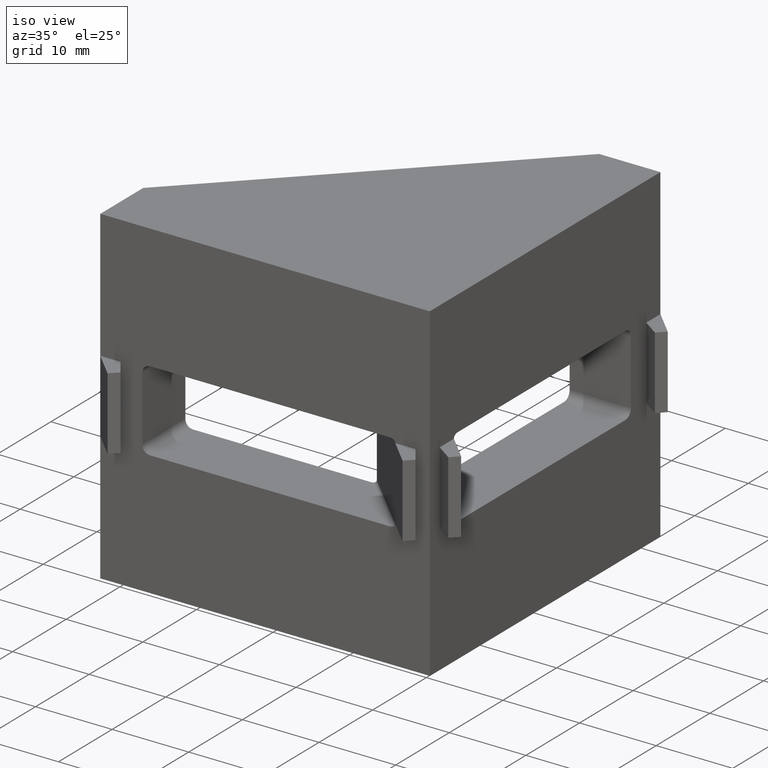
[diagram: clean part render]
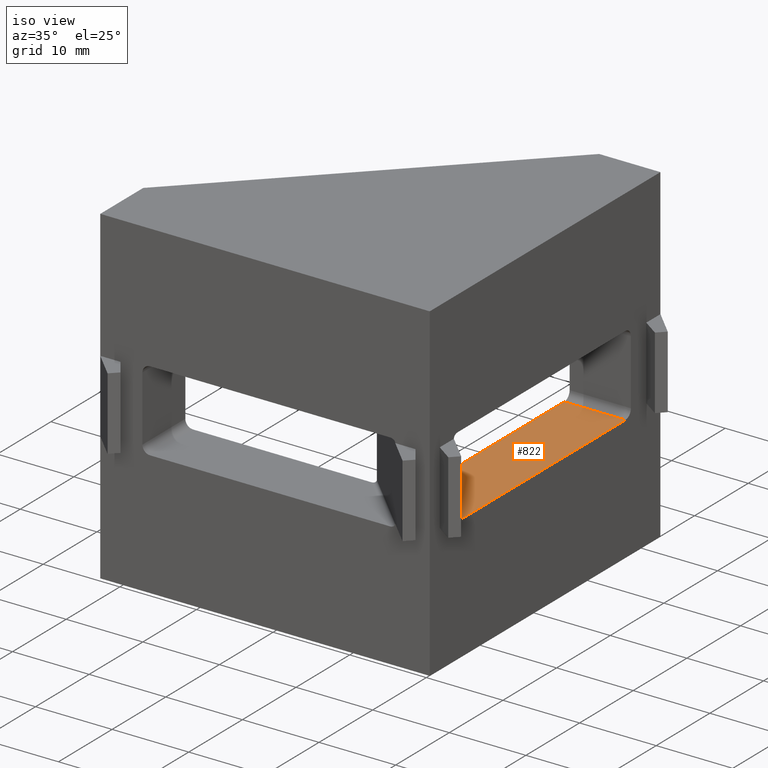
[diagram: same view with one face highlighted and labeled with its STEP entity id]
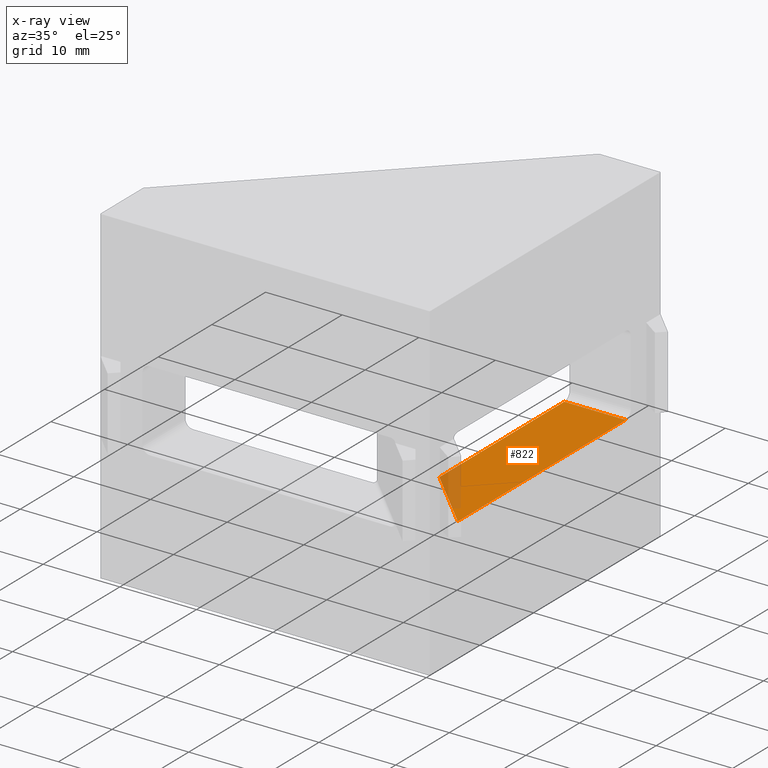
[diagram: x-ray of the same camera — body ghosted, the highlighted face saturated]
A machine part, iso view. The second image highlights one B-rep face of the part: STEP entity #822.
The next image is the same camera in x-ray: the body ghosted, the highlighted face saturated — about 8% of this face is hidden behind the body in this view.
In plain terms, the highlighted planar face has unit normal (0, -0, -1).
Its self-contained STEP definition (entity closure, byte-faithful):
#27=PLANE('',#872);
#66=FACE_OUTER_BOUND('',#112,.T.);
#112=EDGE_LOOP('',(#577,#578,#579,#580));
#161=LINE('',#1167,#265);
#163=LINE('',#1173,#267);
#164=LINE('',#1175,#268);
#165=LINE('',#1176,#269);
#265=VECTOR('',#937,11.3137084989848);
#267=VECTOR('',#943,31.2928932188135);
#268=VECTOR('',#944,8.);
#269=VECTOR('',#945,23.2928932188134);
#378=VERTEX_POINT('',#1164);
#379=VERTEX_POINT('',#1166);
#381=VERTEX_POINT('',#1172);
#382=VERTEX_POINT('',#1174);
#454=EDGE_CURVE('',#378,#379,#161,.T.);
#457=EDGE_CURVE('',#381,#378,#163,.T.);
#458=EDGE_CURVE('',#382,#381,#164,.T.);
#459=EDGE_CURVE('',#379,#382,#165,.T.);
#577=ORIENTED_EDGE('',*,*,#454,.F.);
#578=ORIENTED_EDGE('',*,*,#457,.F.);
#579=ORIENTED_EDGE('',*,*,#458,.F.);
#580=ORIENTED_EDGE('',*,*,#459,.F.);
#822=ADVANCED_FACE('',(#66),#27,.F.);
#872=AXIS2_PLACEMENT_3D('',#1171,#941,#942);
#937=DIRECTION('',(-0.707106781186547,0.707106781186548,-9.16699944821584E-17));
#941=DIRECTION('center_axis',(6.02499210798224E-32,-1.29640949459335E-16,
-1.));
#942=DIRECTION('ref_axis',(-3.5527136788005E-16,1.,-8.88178419700125E-17));
#943=DIRECTION('',(0.,-1.,1.29640949459335E-16));
#944=DIRECTION('',(1.,4.64744521936112E-16,0.));
#945=DIRECTION('',(-4.44089209850063E-16,1.,-1.29640949459335E-16));
#1164=CARTESIAN_POINT('',(21.5,-16.2928932188135,-5.25));
#1166=CARTESIAN_POINT('',(13.5,-8.29289321881345,-5.25));
#1167=CARTESIAN_POINT('',(13.6035533905933,-8.39644660940672,-5.25));
#1171=CARTESIAN_POINT('Origin',(13.5,-7.99999999999999,-5.25));
#1172=CARTESIAN_POINT('',(21.5,15.,-5.25000000000001));
#1173=CARTESIAN_POINT('',(21.5,-14.75,-5.25));
#1174=CARTESIAN_POINT('',(13.5,15.,-5.25000000000001));
#1175=CARTESIAN_POINT('',(13.5,15.,-5.25000000000001));
#1176=CARTESIAN_POINT('',(13.5,6.75000000000001,-5.25));